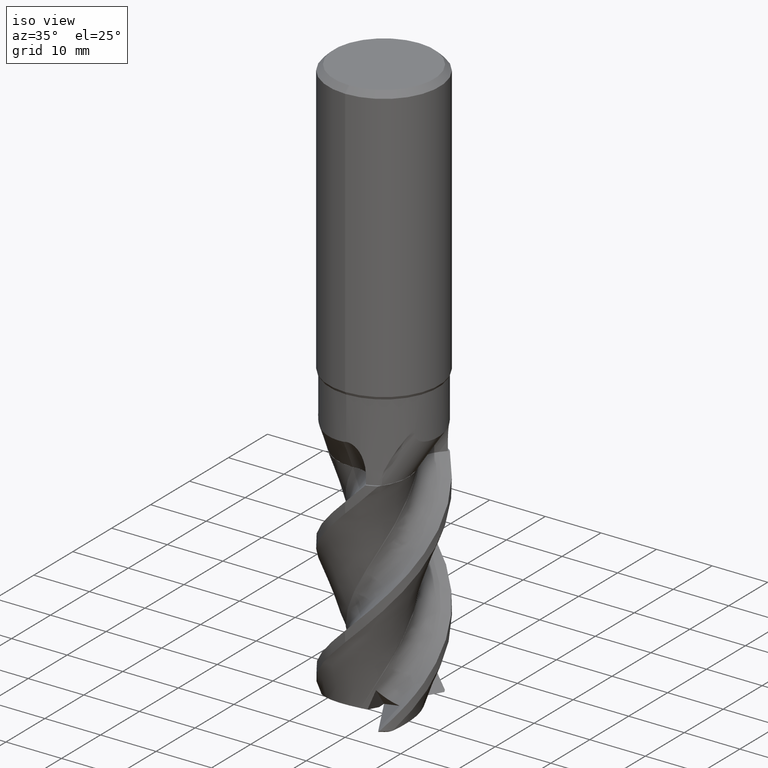
[diagram: clean part render]
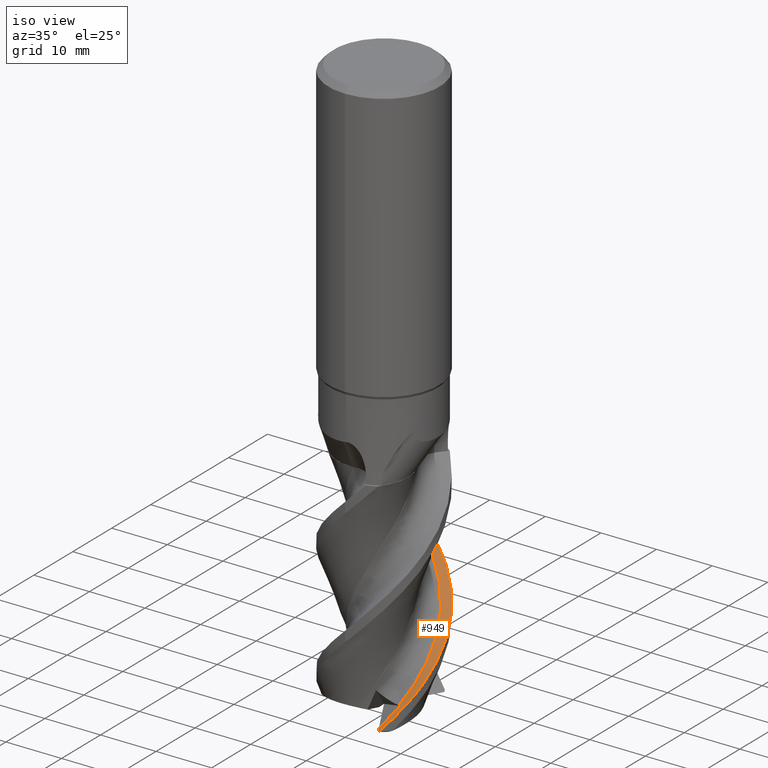
[diagram: same view with one face highlighted and labeled with its STEP entity id]
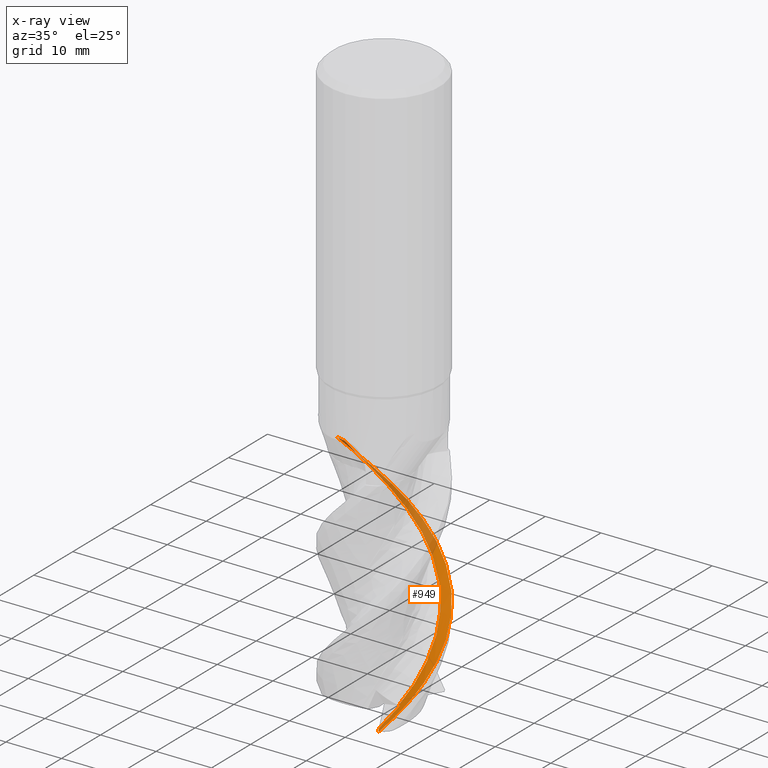
[diagram: x-ray of the same camera — body ghosted, the highlighted face saturated]
A machine part, iso view. The second image highlights one B-rep face of the part: STEP entity #949.
The next image is the same camera in x-ray: the body ghosted, the highlighted face saturated — about 28% of this face is hidden behind the body in this view.
In plain terms, the highlighted face is a freeform B-spline surface patch.
Its self-contained STEP definition (entity closure, byte-faithful):
#471=EDGE_CURVE('',#1187,#537,#1329,.T.);
#497=EDGE_CURVE('',#967,#1281,#1357,.T.);
#525=EDGE_CURVE('',#1271,#641,#1388,.T.);
#537=VERTEX_POINT('',#1401);
#561=VERTEX_POINT('',#1427);
#613=EDGE_CURVE('',#641,#1253,#1485,.T.);
#641=VERTEX_POINT('',#1517);
#657=EDGE_CURVE('',#1253,#1187,#1535,.T.);
#683=EDGE_CURVE('',#537,#967,#1561,.T.);
#861=EDGE_CURVE('',#1281,#561,#1759,.T.);
#949=ADVANCED_FACE('',(#1852),#1853,.T.);
#967=VERTEX_POINT('',#1873);
#1017=EDGE_CURVE('',#561,#1271,#1925,.T.);
#1187=VERTEX_POINT('',#2112);
#1253=VERTEX_POINT('',#2183);
#1271=VERTEX_POINT('',#2202);
#1281=VERTEX_POINT('',#2214);
#1329=B_SPLINE_CURVE_WITH_KNOTS('',3,(#2316,#2317,#2318,#2319),.UNSPECIFIED.,.F.,.F.,(4,4),(0.0,1.86574099658228),.UNSPECIFIED.);
#1357=B_SPLINE_CURVE_WITH_KNOTS('',3,(#2415,#2416,#2417,#2418,#2419,#2420,#2421,#2422,#2423,#2424,#2425,#2426,#2427,#2428,#2429,#2430,#2431,#2432,#2433,#2434,#2435,#2436,#2437,#2438,#2439,#2440,#2441,#2442,#2443,#2444,#2445,#2446,#2447,#2448,#2449,#2450,#2451,#2452,#2453,#2454,#2455,#2456,#2457,#2458,#2459,#2460,#2461,#2462,#2463,#2464),.UNSPECIFIED.,.F.,.F.,(4,2,2,2,2,2,2,2,2,2,2,2,2,2,2,2,2,2,2,2,2,2,2,2,4),(0.0,1.83688179088632,5.68461323344617,6.58714347548121,8.38778271226653,10.2578606888634,12.9205590427445,14.8115356261273,18.507071820997,20.4283711112207,22.1734569225614,24.0094227868724,26.6497551941611,28.5041572687774,32.1316176911137,34.0160028990023,35.713504521051,37.512762740781,39.9990802534086,40.9011966697282,43.2801547555303,44.7519676223213,45.309646177908,46.6616631189539,47.8933672128346),.UNSPECIFIED.);
#1388=B_SPLINE_CURVE_WITH_KNOTS('',3,(#3016,#3017,#3018,#3019,#3020,#3021,#3022,#3023,#3024,#3025,#3026,#3027,#3028,#3029,#3030,#3031,#3032,#3033,#3034,#3035,#3036,#3037,#3038,#3039,#3040,#3041,#3042,#3043,#3044,#3045,#3046,#3047,#3048,#3049,#3050,#3051,#3052,#3053),.UNSPECIFIED.,.F.,.F.,(4,2,2,2,2,2,2,2,2,2,2,2,2,2,2,2,2,2,4),(0.0,1.17018952612344,1.61476621333717,2.01305195421356,2.27869455460012,2.5419910493186,2.97181252233157,3.16650981999703,3.26459722587915,3.35482363061817,3.45772349967878,3.63341462547851,4.18738043732987,6.06608366809152,8.30682341428259,10.0075057739144,10.1733693496282,10.6662359499394,12.1676773603142),.UNSPECIFIED.);
#1401=CARTESIAN_POINT('',(-9.8195921515313,1.8903994254085,-64.0));
#1427=CARTESIAN_POINT('',(4.88773809838241,-8.49411656863862,-104.0));
#1485=B_SPLINE_CURVE_WITH_KNOTS('',3,(#3378,#3379,#3380,#3381,#3382,#3383),.UNSPECIFIED.,.F.,.F.,(4,2,4),(0.0,1.05077420778341,2.10613535444276),.UNSPECIFIED.);
#1517=CARTESIAN_POINT('',(6.74552074163303,-5.5651342774516,-100.392685558984));
#1535=B_SPLINE_CURVE_WITH_KNOTS('',3,(#3953,#3954,#3955,#3956,#3957,#3958,#3959,#3960,#3961,#3962,#3963,#3964,#3965,#3966,#3967,#3968,#3969,#3970,#3971,#3972,#3973,#3974,#3975,#3976,#3977,#3978,#3979,#3980,#3981,#3982,#3983,#3984,#3985,#3986,#3987,#3988,#3989,#3990,#3991,#3992,#3993,#3994,#3995,#3996,#3997,#3998,#3999,#4000,#4001,#4002,#4003,#4004,#4005,#4006,#4007,#4008),.UNSPECIFIED.,.F.,.F.,(4,1,1,2,1,2,1,2,1,1,1,2,1,2,1,2,1,2,1,2,1,2,1,2,1,2,1,2,1,2,1,2,1,2,1,2,1,4),(0.0,1.2562153494694,1.88432302420411,2.51243069893881,3.76864604840821,5.02486139787761,7.53729209681642,10.0497227957552,11.3059381452246,12.562153494694,13.8183688441634,15.0745841936328,17.5870148925716,20.0994455915105,22.6118762904493,25.1243069893881,27.6367376883269,30.1491683872657,32.6615990862045,35.1740297851433,37.6864604840821,40.1988911830209,42.7113218819597,45.2237525808985,47.7361832798373,50.2486139787761,52.7610446777149,55.2734753766537,57.7859060755926,60.2983367745314,62.8107674734702,65.323198172409,67.8356288713478,70.3480595702866,72.8604902692254,75.3729209681642,77.885351667103,80.3977823660418),.UNSPECIFIED.);
#1561=B_SPLINE_CURVE_WITH_KNOTS('',3,(#4102,#4103,#4104,#4105,#4106,#4107,#4108,#4109,#4110,#4111,#4112,#4113,#4114,#4115,#4116,#4117,#4118,#4119,#4120,#4121,#4122,#4123,#4124,#4125,#4126,#4127,#4128,#4129,#4130,#4131,#4132,#4133,#4134,#4135,#4136,#4137,#4138,#4139,#4140,#4141,#4142,#4143,#4144,#4145,#4146,#4147,#4148,#4149,#4150,#4151),.UNSPECIFIED.,.F.,.F.,(4,2,2,2,2,2,2,2,2,2,2,2,2,2,2,2,2,2,2,2,2,2,2,2,4),(0.0,1.83688179088632,5.68461323344617,6.58714347548121,8.38778271226653,10.2578606888634,12.9205590427445,14.8115356261273,18.507071820997,20.4283711112207,22.1734569225614,24.0094227868724,26.6497551941611,28.5041572687774,32.1316176911137,34.0160028990023,35.713504521051,37.512762740781,39.9990802534086,40.9011966697282,43.2801547555303,44.7519676223213,45.309646177908,46.6616631189539,47.8933672128346),.UNSPECIFIED.);
#1759=B_SPLINE_CURVE_WITH_KNOTS('',3,(#5998,#5999,#6000,#6001),.UNSPECIFIED.,.F.,.F.,(4,4),(0.0,0.376044254599672),.UNSPECIFIED.);
#1852=FACE_OUTER_BOUND('',#7028,.T.);
#1853=B_SPLINE_SURFACE_WITH_KNOTS('',3,3,((#7029,#7030,#7031,#7032,#7033,#7034,#7035,#7036,#7037,#7038,#7039,#7040,#7041,#7042,#7043,#7044,#7045,#7046,#7047,#7048,#7049,#7050,#7051,#7052,#7053,#7054,#7055,#7056,#7057,#7058,#7059,#7060,#7061,#7062,#7063,#7064,#7065,#7066,#7067,#7068,#7069,#7070,#7071,#7072,#7073,#7074,#7075,#7076,#7077,#7078,#7079,#7080,#7081,#7082,#7083,#7084,#7085,#7086,#7087,#7088,#7089,#7090,#7091,#7092,#7093,#7094,#7095,#7096,#7097,#7098,#7099,#7100,#7101,#7102),(#7103,#7104,#7105,#7106,#7107,#7108,#7109,#7110,#7111,#7112,#7113,#7114,#7115,#7116,#7117,#7118,#7119,#7120,#7121,#7122,#7123,#7124,#7125,#7126,#7127,#7128,#7129,#7130,#7131,#7132,#7133,#7134,#7135,#7136,#7137,#7138,#7139,#7140,#7141,#7142,#7143,#7144,#7145,#7146,#7147,#7148,#7149,#7150,#7151,#7152,#7153,#7154,#7155,#7156,#7157,#7158,#7159,#7160,#7161,#7162,#7163,#7164,#7165,#7166,#7167,#7168,#7169,#7170,#7171,#7172,#7173,#7174,#7175,#7176),(#7177,#7178,#7179,#7180,#7181,#7182,#7183,#7184,#7185,#7186,#7187,#7188,#7189,#7190,#7191,#7192,#7193,#7194,#7195,#7196,#7197,#7198,#7199,#7200,#7201,#7202,#7203,#7204,#7205,#7206,#7207,#7208,#7209,#7210,#7211,#7212,#7213,#7214,#7215,#7216,#7217,#7218,#7219,#7220,#7221,#7222,#7223,#7224,#7225,#7226,#7227,#7228,#7229,#7230,#7231,#7232,#7233,#7234,#7235,#7236,#7237,#7238,#7239,#7240,#7241,#7242,#7243,#7244,#7245,#7246,#7247,#7248,#7249,#7250),(#7251,#7252,#7253,#7254,#7255,#7256,#7257,#7258,#7259,#7260,#7261,#7262,#7263,#7264,#7265,#7266,#7267,#7268,#7269,#7270,#7271,#7272,#7273,#7274,#7275,#7276,#7277,#7278,#7279,#7280,#7281,#7282,#7283,#7284,#7285,#7286,#7287,#7288,#7289,#7290,#7291,#7292,#7293,#7294,#7295,#7296,#7297,#7298,#7299,#7300,#7301,#7302,#7303,#7304,#7305,#7306,#7307,#7308,#7309,#7310,#7311,#7312,#7313,#7314,#7315,#7316,#7317,#7318,#7319,#7320,#7321,#7322,#7323,#7324)),.UNSPECIFIED.,.F.,.F.,.F.,(4,4),(4,1,1,2,1,2,1,1,2,1,1,2,1,1,1,2,1,1,2,1,1,2,1,1,1,2,1,1,2,1,1,2,1,1,1,2,1,1,2,1,1,2,1,1,1,2,1,1,2,1,1,2,1,1,1,4),(5.32907051820075E-015,2.03333333333333),(0.0,0.942161512102053,1.88432302420411,2.51243069893881,3.76864604840821,5.02486139787761,7.53729209681642,8.79350744628582,10.0497227957552,11.9340458199593,13.8183688441634,15.0745841936328,16.3307995431022,17.5870148925716,18.8432302420411,20.0994455915105,21.3556609409799,23.239983965184,25.1243069893881,27.0086300135922,28.8929530377963,30.1491683872657,31.4053837367351,32.6615990862045,33.9178144356739,35.1740297851433,36.4302451346127,38.3145681588168,40.1988911830209,42.083214207225,43.9675372314291,45.2237525808985,46.4799679303679,47.7361832798373,48.9923986293067,50.2486139787761,51.5048293282455,53.3891523524496,55.2734753766537,57.1577984008579,59.042121425062,60.2983367745314,61.5545521240008,62.8107674734702,64.0669828229396,65.323198172409,66.5794135218784,68.4637365460825,70.3480595702866,72.2323825944907,74.1167056186948,75.3729209681642,76.6291363176336,77.885351667103,79.1415670165724,80.3977823660418),.UNSPECIFIED.);
#1873=CARTESIAN_POINT('',(2.41256380381924E-013,9.99993471722382,-77.8174550813689));
#1925=B_SPLINE_CURVE_WITH_KNOTS('',3,(#7788,#7789,#7790,#7791),.UNSPECIFIED.,.F.,.F.,(4,4),(0.0,1.49250499094357),.UNSPECIFIED.);
#2112=CARTESIAN_POINT('',(-8.21583084974177,1.59106973061077,-64.0000000000002));
#2183=CARTESIAN_POINT('',(6.41067370808631,-5.37938452218688,-100.473594224671));
#2202=CARTESIAN_POINT('',(4.46408683878391,-7.76761527020012,-104.0));
#2214=CARTESIAN_POINT('',(5.16433493080699,-8.56327301459242,-103.8));
#2316=CARTESIAN_POINT('',(-8.21583084976017,1.59106973051216,-64.0));
#2317=CARTESIAN_POINT('',(-8.82718747143766,1.70517358014419,-64.0));
#2318=CARTESIAN_POINT('',(-9.43854385485357,1.81927870636452,-64.0));
#2319=CARTESIAN_POINT('',(-10.0499,1.93338510917107,-64.0));
#2415=CARTESIAN_POINT('',(-9.8195921515313,1.89039942540851,-64.0));
#2416=CARTESIAN_POINT('',(-9.73680179583058,2.32045577612645,-64.4279032008373));
#2417=CARTESIAN_POINT('',(-9.62616861492684,2.74299842483845,-64.8612519519152));
#2418=CARTESIAN_POINT('',(-9.20147259722876,4.02005363807295,-66.2119453588237));
#2419=CARTESIAN_POINT('',(-8.79681885369268,4.84242542738371,-67.1408594066878));
#2420=CARTESIAN_POINT('',(-8.16514397107321,5.77707335028328,-68.2666298142365));
#2421=CARTESIAN_POINT('',(-8.03905614943915,5.95133236644778,-68.4799434901195));
#2422=CARTESIAN_POINT('',(-7.6434263994983,6.46232165426562,-69.1162582574725));
#2423=CARTESIAN_POINT('',(-7.35946761866097,6.78430140816072,-69.5345292134535));
#2424=CARTESIAN_POINT('',(-6.72891096634235,7.41115819908335,-70.4222580444062));
#2425=CARTESIAN_POINT('',(-6.38746227012636,7.70720699300879,-70.8778866002762));
#2426=CARTESIAN_POINT('',(-5.51751157652145,8.36455225197479,-71.9813376341191));
#2427=CARTESIAN_POINT('',(-4.96811168381596,8.70254915214437,-72.6321638236527));
#2428=CARTESIAN_POINT('',(-3.97444745947986,9.18766042162107,-73.7311607623126));
#2429=CARTESIAN_POINT('',(-3.55336347728873,9.3585454748018,-74.1709372673356));
#2430=CARTESIAN_POINT('',(-2.26623385999863,9.78088875441132,-75.514618129322));
#2431=CARTESIAN_POINT('',(-1.38483293467721,9.94334112034112,-76.4215144979877));
#2432=CARTESIAN_POINT('',(-0.0363006088850028,10.0105285744786,-77.7826774828773));
#2433=CARTESIAN_POINT('',(0.428775960197617,10.0016701883967,-78.247236054852));
#2434=CARTESIAN_POINT('',(1.3172894859256,9.9218848606799,-79.1252920679502));
#2435=CARTESIAN_POINT('',(1.7360398637281,9.85749995050665,-79.5382619480409));
#2436=CARTESIAN_POINT('',(2.59874100573697,9.66698184683463,-80.4203157849213));
#2437=CARTESIAN_POINT('',(3.03234541832829,9.53971035256465,-80.8759048502464));
#2438=CARTESIAN_POINT('',(4.0615590237687,9.16084746319968,-81.9857675872801));
#2439=CARTESIAN_POINT('',(4.64847958002076,8.87790319686943,-82.6431174089107));
#2440=CARTESIAN_POINT('',(5.59777984951222,8.29905298076998,-83.7477824578689));
#2441=CARTESIAN_POINT('',(5.96848125758253,8.03655919389752,-84.1873210526903));
#2442=CARTESIAN_POINT('',(7.01801302311412,7.17985215591402,-85.531584927985));
#2443=CARTESIAN_POINT('',(7.6301750734402,6.5245551675841,-86.4390864183552));
#2444=CARTESIAN_POINT('',(8.41368232905812,5.42424226569849,-87.8005745330614));
#2445=CARTESIAN_POINT('',(8.65678997469815,5.02769801326058,-88.2649574624631));
#2446=CARTESIAN_POINT('',(9.06669987096167,4.23928760390179,-89.1392161205382));
#2447=CARTESIAN_POINT('',(9.23701700052727,3.85479958518363,-89.5493891767617));
#2448=CARTESIAN_POINT('',(9.5410969636832,3.02853654652327,-90.4285406652441));
#2449=CARTESIAN_POINT('',(9.66794885189552,2.59471603395918,-90.8842700001985));
#2450=CARTESIAN_POINT('',(9.89893487455372,1.54824090147482,-91.9688175478429));
#2451=CARTESIAN_POINT('',(9.9766331728941,0.927206279076268,-92.6004351387727));
#2452=CARTESIAN_POINT('',(10.0022994472353,0.0727103344601177,-93.450955853776));
#2453=CARTESIAN_POINT('',(10.0013906285882,-0.155806862244051,-93.6766676732029));
#2454=CARTESIAN_POINT('',(9.96927950575422,-0.989334851649771,-94.4938435346194));
#2455=CARTESIAN_POINT('',(9.88345283613999,-1.81925026488744,-95.3172827968889));
#2456=CARTESIAN_POINT('',(9.4356740911284,-3.3686339840874,-96.9491844614293));
#2457=CARTESIAN_POINT('',(9.20938442838165,-3.94633219056517,-97.5752784988786));
#2458=CARTESIAN_POINT('',(8.8234325710378,-4.71192885272547,-98.4285172984764));
#2459=CARTESIAN_POINT('',(8.7095674962793,-4.91930502920194,-98.6622106111756));
#2460=CARTESIAN_POINT('',(8.29297727467946,-5.61762601590349,-99.4586691797531));
#2461=CARTESIAN_POINT('',(7.84686830302832,-6.27042652931896,-100.238006715456));
#2462=CARTESIAN_POINT('',(6.59274472440632,-7.56807428979895,-102.064097949723));
#2463=CARTESIAN_POINT('',(5.91269706929701,-8.11194858551921,-102.941449862242));
#2464=CARTESIAN_POINT('',(5.16433493080699,-8.56327301459242,-103.8));
#3016=CARTESIAN_POINT('',(5.15103700784218,-9.03679388245954,-104.043172367634));
#3017=CARTESIAN_POINT('',(4.95930484677053,-8.69712411452996,-104.039635709793));
#3018=CARTESIAN_POINT('',(4.76225019266645,-8.34471009099261,-104.034063441737));
#3019=CARTESIAN_POINT('',(4.5761013002307,-7.99374655699459,-104.018248353137));
#3020=CARTESIAN_POINT('',(4.51638922907323,-7.87854564222724,-104.011643847903));
#3021=CARTESIAN_POINT('',(4.42539329959958,-7.68560110691826,-103.991416580701));
#3022=CARTESIAN_POINT('',(4.39225593358866,-7.6065008026013,-103.978885828254));
#3023=CARTESIAN_POINT('',(4.35797807788311,-7.49419166000993,-103.948106226119));
#3024=CARTESIAN_POINT('',(4.35024269746792,-7.45571680862636,-103.933486327788));
#3025=CARTESIAN_POINT('',(4.34574510438096,-7.38779442940762,-103.898363387841));
#3026=CARTESIAN_POINT('',(4.34886424338266,-7.35783428213703,-103.877681408228));
#3027=CARTESIAN_POINT('',(4.37108455645347,-7.28488637722586,-103.81245072274));
#3028=CARTESIAN_POINT('',(4.39944123335459,-7.24434232945314,-103.759917897478));
#3029=CARTESIAN_POINT('',(4.46537639911806,-7.1833788322041,-103.657235855851));
#3030=CARTESIAN_POINT('',(4.48803031760258,-7.16539343093187,-103.623686653132));
#3031=CARTESIAN_POINT('',(4.5213555314168,-7.1408270633172,-103.57543914307));
#3032=CARTESIAN_POINT('',(4.53275147849084,-7.13275283694633,-103.55913118055));
#3033=CARTESIAN_POINT('',(4.55463240522216,-7.1176881331321,-103.528075047505));
#3034=CARTESIAN_POINT('',(4.56526360997546,-7.11056195578898,-103.513098865431));
#3035=CARTESIAN_POINT('',(4.58800431776849,-7.09562138467334,-103.48124093167));
#3036=CARTESIAN_POINT('',(4.60028771196923,-7.08773542108445,-103.464140513955));
#3037=CARTESIAN_POINT('',(4.6334409799016,-7.06680316157239,-103.41819179125));
#3038=CARTESIAN_POINT('',(4.65492544004285,-7.05362009121649,-103.388638549492));
#3039=CARTESIAN_POINT('',(4.74255463198347,-7.00070768071502,-103.268600297746));
#3040=CARTESIAN_POINT('',(4.80987499188324,-6.96188892468254,-103.177451924104));
#3041=CARTESIAN_POINT('',(5.10513505796856,-6.7908170457337,-102.777207265095));
#3042=CARTESIAN_POINT('',(5.38309687153727,-6.6296828264518,-102.400361952579));
#3043=CARTESIAN_POINT('',(6.0985948422236,-6.13601415134314,-101.384219540045));
#3044=CARTESIAN_POINT('',(6.46004310538173,-5.84172713517262,-100.844653002892));
#3045=CARTESIAN_POINT('',(7.06332042275347,-5.25831988526897,-99.8901856505262));
#3046=CARTESIAN_POINT('',(7.30916015188877,-4.98845889694162,-99.4824621294164));
#3047=CARTESIAN_POINT('',(7.56365725188227,-4.67176369098853,-99.038562629607));
#3048=CARTESIAN_POINT('',(7.57405600816375,-4.65860526867302,-99.0202973329684));
#3049=CARTESIAN_POINT('',(7.68796011156917,-4.51458625417103,-98.8202923768302));
#3050=CARTESIAN_POINT('',(7.80561408121423,-4.36591740111126,-98.6137564524942));
#3051=CARTESIAN_POINT('',(8.21988198123039,-3.83539760884782,-97.882410777544));
#3052=CARTESIAN_POINT('',(8.49425975339056,-3.46812235958471,-97.38873260986));
#3053=CARTESIAN_POINT('',(8.77106490994896,-3.05530091515071,-96.8659667860052));
#3378=CARTESIAN_POINT('',(8.23628951109186,-6.35322956295865,-100.074640674409));
#3379=CARTESIAN_POINT('',(7.92878518340689,-6.1964009926805,-100.134025883696));
#3380=CARTESIAN_POINT('',(7.62249361793048,-6.03699978844565,-100.196637952074));
#3381=CARTESIAN_POINT('',(7.01399283455273,-5.7128341503595,-100.329148698625));
#3382=CARTESIAN_POINT('',(6.710697165961,-5.54745820097393,-100.399319469805));
#3383=CARTESIAN_POINT('',(6.41067370811109,-5.37938452215025,-100.47359422474));
#3953=CARTESIAN_POINT('',(-8.26574009113054,-1.29562797785031,-124.0));
#3954=CARTESIAN_POINT('',(-8.26381339394848,-1.32321925418586,-123.58336594033));
#3955=CARTESIAN_POINT('',(-8.23964321175438,-1.51662926318661,-122.958234614316));
#3956=CARTESIAN_POINT('',(-8.11439845143223,-2.07880939913278,-122.124687904713));
#3957=CARTESIAN_POINT('',(-8.00410268765233,-2.45738463261917,-121.708004237344));
#3958=CARTESIAN_POINT('',(-7.78901235162283,-3.08982819911714,-121.083139890201));
#3959=CARTESIAN_POINT('',(-7.45990172956491,-3.8455394930008,-120.25005872492));
#3960=CARTESIAN_POINT('',(-7.09251773883762,-4.45267537615328,-119.416819320437));
#3961=CARTESIAN_POINT('',(-6.52765965472504,-5.27965676578334,-118.166680986508));
#3962=CARTESIAN_POINT('',(-5.65067632651088,-6.28381162661117,-116.499837170973));
#3963=CARTESIAN_POINT('',(-4.50974352275236,-7.08688173495618,-114.833056140322));
#3964=CARTESIAN_POINT('',(-3.54702703536084,-7.58812874691363,-113.583140582419));
#3965=CARTESIAN_POINT('',(-2.8971856905836,-7.87415624522017,-112.749876240125));
#3966=CARTESIAN_POINT('',(-1.90137145504802,-8.17151303745623,-111.499946850793));
#3967=CARTESIAN_POINT('',(-0.88063490939447,-8.34379561372967,-110.249956626945));
#3968=CARTESIAN_POINT('',(-0.179351250185985,-8.37419565342444,-109.416598961492));
#3969=CARTESIAN_POINT('',(0.890089857422737,-8.35139887083098,-108.166567918505));
#3970=CARTESIAN_POINT('',(2.2633969823659,-8.1437686155387,-106.499923721622));
#3971=CARTESIAN_POINT('',(3.54766308056695,-7.61293809815473,-104.833202526084));
#3972=CARTESIAN_POINT('',(4.78571486586925,-6.90187860876666,-103.166545567672));
#3973=CARTESIAN_POINT('',(5.89037324906806,-6.06167916131524,-101.499936909684));
#3974=CARTESIAN_POINT('',(6.76241130969973,-4.98130653156371,-99.8332161398162));
#3975=CARTESIAN_POINT('',(7.50854616000446,-3.76314268856997,-98.1665460259867));
#3976=CARTESIAN_POINT('',(8.07561998049203,-2.49524251000948,-96.4999296368281));
#3977=CARTESIAN_POINT('',(8.3228053099102,-1.12872729764395,-94.8332097168632));
#3978=CARTESIAN_POINT('',(8.39348981306872,0.297525032336451,-93.1665423475839));
#3979=CARTESIAN_POINT('',(8.28332937863807,1.68163793998313,-91.4999270761215));
#3980=CARTESIAN_POINT('',(7.84519053433683,2.99938461449989,-89.8332065188816));
#3981=CARTESIAN_POINT('',(7.22334575602256,4.28516143506216,-88.1665385976218));
#3982=CARTESIAN_POINT('',(6.46297283645776,5.44715753409608,-86.4999234122097));
#3983=CARTESIAN_POINT('',(5.44673090784325,6.39345986202193,-84.8332033574622));
#3984=CARTESIAN_POINT('',(4.28472958475761,7.22359586734123,-83.1665356656587));
#3985=CARTESIAN_POINT('',(3.06046640841706,7.87877424995012,-81.499920220675));
#3986=CARTESIAN_POINT('',(1.71485848470736,8.22207833204614,-79.8331996846058));
#3987=CARTESIAN_POINT('',(0.29691562244691,8.3935194028311,-78.1665318182108));
#3988=CARTESIAN_POINT('',(-1.09170540207553,8.38150965592981,-76.4999167002086));
#3989=CARTESIAN_POINT('',(-2.43705441538407,8.03765908481578,-74.8331966499015));
#3990=CARTESIAN_POINT('',(-3.7634044387641,7.50839719799417,-73.1665288952593));
#3991=CARTESIAN_POINT('',(-4.9761754656638,6.83221724741606,-71.4999133750214));
#3992=CARTESIAN_POINT('',(-5.99208072730137,5.88542876194576,-69.8331927880295));
#3993=CARTESIAN_POINT('',(-6.90245433981807,4.78491718365136,-68.1665248992601));
#3994=CARTESIAN_POINT('',(-7.64264621393645,3.60992771732773,-66.4999098825569));
#3995=CARTESIAN_POINT('',(-8.08021925421969,2.29200306561763,-64.833190271443));
#3996=CARTESIAN_POINT('',(-8.35148909851181,0.889895275798577,-63.166523111745));
#3997=CARTESIAN_POINT('',(-8.43773641881676,-0.495883767398353,-61.4999072089256));
#3998=CARTESIAN_POINT('',(-8.18996467871237,-1.86221818190606,-59.8331843982385));
#3999=CARTESIAN_POINT('',(-7.75576710128292,-3.22295546557219,-58.1665138047882));
#4000=CARTESIAN_POINT('',(-7.16683805631955,-4.48086065845404,-56.4999008383461));
#4001=CARTESIAN_POINT('',(-6.29455400118147,-5.5606613032212,-54.8331893314168));
#4002=CARTESIAN_POINT('',(-5.26242406827164,-6.54562548092147,-53.1665300884386));
#4003=CARTESIAN_POINT('',(-4.14370637086448,-7.36706736840156,-51.4999046423304));
#4004=CARTESIAN_POINT('',(-2.85590825229019,-7.89884433546843,-49.8331599200053));
#4005=CARTESIAN_POINT('',(-1.46825626773256,-8.26977213491846,-48.1664767538232));
#4006=CARTESIAN_POINT('',(-0.0911222550154305,-8.45073518937306,-46.4998994001679));
#4007=CARTESIAN_POINT('',(1.26622319433596,-8.30189648188423,-44.8332389841868));
#4008=CARTESIAN_POINT('',(1.94416062067068,-8.13971366882414,-43.9999156358532));
#4102=CARTESIAN_POINT('',(-9.8195921515313,1.89039942540851,-64.0));
#4103=CARTESIAN_POINT('',(-9.73680179583058,2.32045577612645,-64.4279032008373));
#4104=CARTESIAN_POINT('',(-9.62616861492684,2.74299842483845,-64.8612519519152));
#4105=CARTESIAN_POINT('',(-9.20147259722876,4.02005363807295,-66.2119453588237));
#4106=CARTESIAN_POINT('',(-8.79681885369268,4.84242542738371,-67.1408594066878));
#4107=CARTESIAN_POINT('',(-8.16514397107321,5.77707335028328,-68.2666298142365));
#4108=CARTESIAN_POINT('',(-8.03905614943915,5.95133236644778,-68.4799434901195));
#4109=CARTESIAN_POINT('',(-7.6434263994983,6.46232165426562,-69.1162582574725));
#4110=CARTESIAN_POINT('',(-7.35946761866097,6.78430140816072,-69.5345292134535));
#4111=CARTESIAN_POINT('',(-6.72891096634235,7.41115819908335,-70.4222580444062));
#4112=CARTESIAN_POINT('',(-6.38746227012636,7.70720699300879,-70.8778866002762));
#4113=CARTESIAN_POINT('',(-5.51751157652145,8.36455225197479,-71.9813376341191));
#4114=CARTESIAN_POINT('',(-4.96811168381596,8.70254915214437,-72.6321638236527));
#4115=CARTESIAN_POINT('',(-3.97444745947986,9.18766042162107,-73.7311607623126));
#4116=CARTESIAN_POINT('',(-3.55336347728873,9.3585454748018,-74.1709372673356));
#4117=CARTESIAN_POINT('',(-2.26623385999863,9.78088875441132,-75.514618129322));
#4118=CARTESIAN_POINT('',(-1.38483293467721,9.94334112034112,-76.4215144979877));
#4119=CARTESIAN_POINT('',(-0.0363006088850028,10.0105285744786,-77.7826774828773));
#4120=CARTESIAN_POINT('',(0.428775960197617,10.0016701883967,-78.247236054852));
#4121=CARTESIAN_POINT('',(1.3172894859256,9.9218848606799,-79.1252920679502));
#4122=CARTESIAN_POINT('',(1.7360398637281,9.85749995050665,-79.5382619480409));
#4123=CARTESIAN_POINT('',(2.59874100573697,9.66698184683463,-80.4203157849213));
#4124=CARTESIAN_POINT('',(3.03234541832829,9.53971035256465,-80.8759048502464));
#4125=CARTESIAN_POINT('',(4.0615590237687,9.16084746319968,-81.9857675872801));
#4126=CARTESIAN_POINT('',(4.64847958002076,8.87790319686943,-82.6431174089107));
#4127=CARTESIAN_POINT('',(5.59777984951222,8.29905298076998,-83.7477824578689));
#4128=CARTESIAN_POINT('',(5.96848125758253,8.03655919389752,-84.1873210526903));
#4129=CARTESIAN_POINT('',(7.01801302311412,7.17985215591402,-85.531584927985));
#4130=CARTESIAN_POINT('',(7.6301750734402,6.5245551675841,-86.4390864183552));
#4131=CARTESIAN_POINT('',(8.41368232905812,5.42424226569849,-87.8005745330614));
#4132=CARTESIAN_POINT('',(8.65678997469815,5.02769801326058,-88.2649574624631));
#4133=CARTESIAN_POINT('',(9.06669987096167,4.23928760390179,-89.1392161205382));
#4134=CARTESIAN_POINT('',(9.23701700052727,3.85479958518363,-89.5493891767617));
#4135=CARTESIAN_POINT('',(9.5410969636832,3.02853654652327,-90.4285406652441));
#4136=CARTESIAN_POINT('',(9.66794885189552,2.59471603395918,-90.8842700001985));
#4137=CARTESIAN_POINT('',(9.89893487455372,1.54824090147482,-91.9688175478429));
#4138=CARTESIAN_POINT('',(9.9766331728941,0.927206279076268,-92.6004351387727));
#4139=CARTESIAN_POINT('',(10.0022994472353,0.0727103344601177,-93.450955853776));
#4140=CARTESIAN_POINT('',(10.0013906285882,-0.155806862244051,-93.6766676732029));
#4141=CARTESIAN_POINT('',(9.96927950575422,-0.989334851649771,-94.4938435346194));
#4142=CARTESIAN_POINT('',(9.88345283613999,-1.81925026488744,-95.3172827968889));
#4143=CARTESIAN_POINT('',(9.4356740911284,-3.3686339840874,-96.9491844614293));
#4144=CARTESIAN_POINT('',(9.20938442838165,-3.94633219056517,-97.5752784988786));
#4145=CARTESIAN_POINT('',(8.8234325710378,-4.71192885272547,-98.4285172984764));
#4146=CARTESIAN_POINT('',(8.7095674962793,-4.91930502920194,-98.6622106111756));
#4147=CARTESIAN_POINT('',(8.29297727467946,-5.61762601590349,-99.4586691797531));
#4148=CARTESIAN_POINT('',(7.84686830302832,-6.27042652931896,-100.238006715456));
#4149=CARTESIAN_POINT('',(6.59274472440632,-7.56807428979895,-102.064097949723));
#4150=CARTESIAN_POINT('',(5.91269706929701,-8.11194858551921,-102.941449862242));
#4151=CARTESIAN_POINT('',(5.16433493080699,-8.56327301459242,-103.8));
#5998=CARTESIAN_POINT('',(5.16433493080703,-8.56327301459242,-103.8));
#5999=CARTESIAN_POINT('',(5.06432107242561,-8.53974015782523,-103.871802333971));
#6000=CARTESIAN_POINT('',(4.97189830316261,-8.51641244222188,-103.938700327705));
#6001=CARTESIAN_POINT('',(4.88773809838238,-8.49411656863863,-104.0));
#7028=EDGE_LOOP('',(#10677,#10678,#10679,#10680,#10681,#10682,#10683,#10684));
#7029=CARTESIAN_POINT('',(-8.26574009111506,-1.2956279779491,-124.0));
#7030=CARTESIAN_POINT('',(-8.26429506821743,-1.31632143519938,-123.687524455247));
#7031=CARTESIAN_POINT('',(-8.24435125996112,-1.47138904785919,-123.062444451835));
#7032=CARTESIAN_POINT('',(-8.1418757631604,-1.98408830785106,-122.22885941995));
#7033=CARTESIAN_POINT('',(-8.00410268761574,-2.45738463271447,-121.708004237344));
#7034=CARTESIAN_POINT('',(-7.78901235159791,-3.08982819921004,-121.083139890201));
#7035=CARTESIAN_POINT('',(-7.45990172951403,-3.84553949308895,-120.250058724918));
#7036=CARTESIAN_POINT('',(-7.09251773878006,-4.45267537623913,-119.41681932044));
#7037=CARTESIAN_POINT('',(-6.5276596546692,-5.27965676585816,-118.166680986501));
#7038=CARTESIAN_POINT('',(-5.86964081312228,-6.03314254097953,-116.916546802908));
#7039=CARTESIAN_POINT('',(-4.79540882629388,-6.88544091965427,-115.249754042165));
#7040=CARTESIAN_POINT('',(-4.18883802686562,-7.25396407232461,-114.416417621028));
#7041=CARTESIAN_POINT('',(-3.38657428737413,-7.67166991561329,-113.374821322757));
#7042=CARTESIAN_POINT('',(-2.40653553723556,-8.06498487352882,-112.124930949812));
#7043=CARTESIAN_POINT('',(-1.05593218344052,-8.33608628922726,-110.458296596028));
#7044=CARTESIAN_POINT('',(-0.179351250086945,-8.37419565342179,-109.416598961492));
#7045=CARTESIAN_POINT('',(0.533609488320707,-8.3589977983592,-108.583244932834));
#7046=CARTESIAN_POINT('',(1.23379596485044,-8.29885026689846,-107.749910067407));
#7047=CARTESIAN_POINT('',(2.24677431153473,-8.08342131522951,-106.499907681761));
#7048=CARTESIAN_POINT('',(3.22593164388351,-7.74529331911863,-105.249886036802));
#7049=CARTESIAN_POINT('',(3.8571760269819,-7.4351732257644,-104.416538286481));
#7050=CARTESIAN_POINT('',(4.47620191962707,-7.07964348105624,-103.583209807275));
#7051=CARTESIAN_POINT('',(5.20824490168984,-6.59382480494489,-102.54156894399));
#7052=CARTESIAN_POINT('',(6.22421629346769,-5.66510168399277,-100.87491778443));
#7053=CARTESIAN_POINT('',(6.85567816605138,-4.82903605110766,-99.6248823755875));
#7054=CARTESIAN_POINT('',(7.41527930375615,-3.91541316885479,-98.3748797902154));
#7055=CARTESIAN_POINT('',(7.87363990881881,-2.97292661534995,-97.1249117267993));
#7056=CARTESIAN_POINT('',(8.2401933782838,-1.64534761373466,-95.4582310178087));
#7057=CARTESIAN_POINT('',(8.34047643570397,-0.772164215048028,-94.4165428745285));
#7058=CARTESIAN_POINT('',(8.37581868728353,-0.0590380500596632,-93.5832091899186));
#7059=CARTESIAN_POINT('',(8.36530562645541,0.643983299553605,-92.7498918129747));
#7060=CARTESIAN_POINT('',(8.22210402330773,1.66925177654861,-91.4999056928257));
#7061=CARTESIAN_POINT('',(7.95430473693309,2.66929132143671,-90.2498899447023));
#7062=CARTESIAN_POINT('',(7.68972933971441,3.32082881972835,-89.4165395385964));
#7063=CARTESIAN_POINT('',(7.3788069505567,3.96371723001316,-88.583205577907));
#7064=CARTESIAN_POINT('',(6.9458204732367,4.72867622106644,-87.5415592224896));
#7065=CARTESIAN_POINT('',(6.0908678272956,5.80825750302237,-85.8749044270263));
#7066=CARTESIAN_POINT('',(5.30148074237407,6.49722686275545,-84.6248698959868));
#7067=CARTESIAN_POINT('',(4.4299797500633,7.11982886672289,-83.3748691271342));
#7068=CARTESIAN_POINT('',(3.52253607736615,7.64355876729153,-82.124902053242));
#7069=CARTESIAN_POINT('',(2.22436104984508,8.10310120521739,-80.4582212136606));
#7070=CARTESIAN_POINT('',(1.36037276904221,8.26493859974609,-79.4165327180368));
#7071=CARTESIAN_POINT('',(0.651401337913358,8.35065913515384,-78.5831987847798));
#7072=CARTESIAN_POINT('',(-0.0507155516578088,8.38990566691882,-77.7498813213945));
#7073=CARTESIAN_POINT('',(-1.08362942065866,8.31956343018948,-76.4998953835013));
#7074=CARTESIAN_POINT('',(-2.1000933440979,8.12315531326611,-75.2498799480949));
#7075=CARTESIAN_POINT('',(-2.76864192132308,7.90534361305742,-74.4165297112409));
#7076=CARTESIAN_POINT('',(-3.43181693301035,7.64071266967717,-73.5831958339199));
#7077=CARTESIAN_POINT('',(-4.22539426804997,7.26297352886731,-72.5415494265206));
#7078=CARTESIAN_POINT('',(-5.36272220530051,6.48658405353806,-70.8748941700766));
#7079=CARTESIAN_POINT('',(-6.10587742894572,5.7478648145789,-69.6248593019333));
#7080=CARTESIAN_POINT('',(-6.78865763830018,4.92248113086328,-68.3748583853563));
#7081=CARTESIAN_POINT('',(-7.37531983853743,4.05425282851657,-67.1248915138807));
#7082=CARTESIAN_POINT('',(-7.92552041311267,2.79179344936137,-65.4582114648513));
#7083=CARTESIAN_POINT('',(-8.1480367153187,1.94147611806525,-64.4165234815186));
#7084=CARTESIAN_POINT('',(-8.28367163744949,1.24042222315436,-63.5831899016695));
#7085=CARTESIAN_POINT('',(-8.37247229617185,0.542932570281942,-62.7498724247617));
#7086=CARTESIAN_POINT('',(-8.37538486740392,-0.49225647014092,-61.4998855185647));
#7087=CARTESIAN_POINT('',(-8.25139626350556,-1.52004323562355,-60.2498683937769));
#7088=CARTESIAN_POINT('',(-8.08141528432369,-2.2024025029195,-59.4165167498164));
#7089=CARTESIAN_POINT('',(-7.86431649560954,-2.88277114474888,-58.5831814532103));
#7090=CARTESIAN_POINT('',(-7.54357157974268,-3.70127971186924,-57.541534923647));
#7091=CARTESIAN_POINT('',(-6.8494576033723,-4.89072992506272,-55.8748850308164));
#7092=CARTESIAN_POINT('',(-6.16553775950424,-5.68378182551504,-54.6248569260445));
#7093=CARTESIAN_POINT('',(-5.39144030980328,-6.42250495876474,-53.3748624938109));
#7094=CARTESIAN_POINT('',(-4.56765534033731,-7.06887924512995,-52.1248914656843));
#7095=CARTESIAN_POINT('',(-3.3453468407776,-7.70841726737274,-50.4581900753968));
#7096=CARTESIAN_POINT('',(-2.50899525605171,-7.99157628537082,-49.4164891284598));
#7097=CARTESIAN_POINT('',(-1.8151692637775,-8.17704018506644,-48.5831475453687));
#7098=CARTESIAN_POINT('',(-1.12331508161594,-8.31455348385945,-47.749835587392));
#7099=CARTESIAN_POINT('',(-0.0948944935825786,-8.38916061213809,-46.4998822427151));
#7100=CARTESIAN_POINT('',(0.926477810913998,-8.33853213291706,-45.2499072473529));
#7101=CARTESIAN_POINT('',(1.60519190760203,-8.22080507533754,-44.41657731002));
#7102=CARTESIAN_POINT('',(1.94416062076777,-8.13971366880022,-43.9999156358532));
#7103=CARTESIAN_POINT('',(-8.93534187804319,-1.40058588851275,-124.0));
#7104=CARTESIAN_POINT('',(-8.93331518265363,-1.42499074010421,-123.687525520906));
#7105=CARTESIAN_POINT('',(-8.91093651947238,-1.59570112488899,-123.062439252712));
#7106=CARTESIAN_POINT('',(-8.79941459698304,-2.15129392412203,-122.228836681244));
#7107=CARTESIAN_POINT('',(-8.65038224588904,-2.66236207539159,-121.707980402719));
#7108=CARTESIAN_POINT('',(-8.41801525843869,-3.34473708248461,-121.083126302439));
#7109=CARTESIAN_POINT('',(-8.06236714777965,-4.16052562348708,-120.250063512865));
#7110=CARTESIAN_POINT('',(-7.66495511954999,-4.81659424404207,-119.416830678158));
#7111=CARTESIAN_POINT('',(-7.05363461509515,-5.71057079419111,-118.166682135166));
#7112=CARTESIAN_POINT('',(-6.34156678010917,-6.52504217554885,-116.916538276021));
#7113=CARTESIAN_POINT('',(-5.17969243997365,-7.44587954391925,-115.2497365948));
#7114=CARTESIAN_POINT('',(-4.52389112523347,-7.84385722421755,-114.416400009699));
#7115=CARTESIAN_POINT('',(-3.6566994686405,-8.29483191897894,-113.37480900501));
#7116=CARTESIAN_POINT('',(-2.59712991521246,-8.7194646823592,-112.124926577747));
#7117=CARTESIAN_POINT('',(-1.13678041090387,-9.01180632720631,-110.458294666918));
#7118=CARTESIAN_POINT('',(-0.189213759180498,-9.05251399949868,-109.416594755024));
#7119=CARTESIAN_POINT('',(0.581347571484778,-9.03570576382566,-108.583239314744));
#7120=CARTESIAN_POINT('',(1.33817600458135,-8.97031231816287,-107.749904361485));
#7121=CARTESIAN_POINT('',(2.43318204003156,-8.73685155312584,-106.499901925626));
#7122=CARTESIAN_POINT('',(3.4915504167121,-8.37075712802351,-105.24987862134));
#7123=CARTESIAN_POINT('',(4.17370944506734,-8.03519071239009,-104.416530052509));
#7124=CARTESIAN_POINT('',(4.8425538941129,-7.6506078066421,-103.583201774964));
#7125=CARTESIAN_POINT('',(5.63358493575016,-7.12507523041355,-102.54156298663));
#7126=CARTESIAN_POINT('',(6.73147969007859,-6.12042528876873,-100.87491299925));
#7127=CARTESIAN_POINT('',(7.41362493360126,-5.21627135477275,-99.624875148054));
#7128=CARTESIAN_POINT('',(8.01794385484626,-4.22854364893773,-98.3748722601916));
#7129=CARTESIAN_POINT('',(8.51293063995318,-3.2094593006553,-97.1249067507189));
#7130=CARTESIAN_POINT('',(8.90847806002624,-1.77395526405355,-95.458224972625));
#7131=CARTESIAN_POINT('',(9.01639377545027,-0.830047044246701,-94.4165354763269));
#7132=CARTESIAN_POINT('',(9.05420967994321,-0.0592913093162686,-93.5832015900568));
#7133=CARTESIAN_POINT('',(9.04246735867028,0.700623051457517,-92.7498855728361));
#7134=CARTESIAN_POINT('',(8.88708384673963,1.80895966995604,-91.4999005370057));
#7135=CARTESIAN_POINT('',(8.59700691399744,2.88994999509835,-90.2498836365345));
#7136=CARTESIAN_POINT('',(8.31065882509079,3.59407167536229,-89.4165320333763));
#7137=CARTESIAN_POINT('',(7.97427465129303,4.28872912755212,-88.5831980726869));
#7138=CARTESIAN_POINT('',(7.50583437641235,5.11536625474359,-87.5415532797852));
#7139=CARTESIAN_POINT('',(6.58090947368887,6.28206926759705,-85.8748994341616));
#7140=CARTESIAN_POINT('',(5.72718386847745,7.02640700278383,-84.6248624155445));
#7141=CARTESIAN_POINT('',(4.78494488201101,7.69884001653225,-83.3748616466918));
#7142=CARTESIAN_POINT('',(3.80370488325414,8.26451159521738,-82.124897077281));
#7143=CARTESIAN_POINT('',(2.39993690784172,8.76060987501673,-80.4582154346324));
#7144=CARTESIAN_POINT('',(1.46593464737603,8.93506673083132,-79.4165250090615));
#7145=CARTESIAN_POINT('',(0.69964347132365,9.02733284173148,-78.583191479125));
#7146=CARTESIAN_POINT('',(-0.0593189954921292,9.0693779228666,-77.7498748984184));
#7147=CARTESIAN_POINT('',(-1.17596065430254,8.99275847196226,-76.4998902134142));
#7148=CARTESIAN_POINT('',(-2.27474742222846,8.77985318056633,-75.2498736528698));
#7149=CARTESIAN_POINT('',(-2.99728332372318,8.54404388532588,-74.4165222335918));
#7150=CARTESIAN_POINT('',(-3.71389188500992,8.25767941909321,-73.5831883562707));
#7151=CARTESIAN_POINT('',(-4.57149399133635,7.8489420603397,-72.5415434176626));
#7152=CARTESIAN_POINT('',(-5.80067340377865,7.00892237686513,-70.8748891735398));
#7153=CARTESIAN_POINT('',(-6.60361466597451,6.20993931020851,-69.6248517852513));
#7154=CARTESIAN_POINT('',(-7.34111144458671,5.31751201759428,-68.3748508686743));
#7155=CARTESIAN_POINT('',(-7.97483412655028,4.37863158866157,-67.124886489845));
#7156=CARTESIAN_POINT('',(-8.56896670011172,3.01342644859122,-65.4582055484216));
#7157=CARTESIAN_POINT('',(-8.80902102869873,2.0941672611517,-64.416516054316));
#7158=CARTESIAN_POINT('',(-8.95523816958316,1.33640578327293,-63.583182474467));
#7159=CARTESIAN_POINT('',(-9.05085047135894,0.58241738410427,-62.7498662309715));
#7160=CARTESIAN_POINT('',(-9.05342525629811,-0.536725740961931,-61.4998804181757));
#7161=CARTESIAN_POINT('',(-8.91880618289921,-1.64779433642194,-60.2498618414605));
#7162=CARTESIAN_POINT('',(-8.73469116384429,-2.38528426390423,-59.4165094218825));
#7163=CARTESIAN_POINT('',(-8.49969034032581,-3.12049936007325,-58.5831733186352));
#7164=CARTESIAN_POINT('',(-8.15254751623723,-4.00507882308884,-57.5415287304158));
#7165=CARTESIAN_POINT('',(-7.40145161589831,-5.29065424682896,-55.8748795426807));
#7166=CARTESIAN_POINT('',(-6.66167494092423,-6.14756990727585,-54.6248502007836));
#7167=CARTESIAN_POINT('',(-5.82463818501293,-6.94556398598202,-53.3748557685499));
#7168=CARTESIAN_POINT('',(-4.93376112992447,-7.64386470806855,-52.1248876257425));
#7169=CARTESIAN_POINT('',(-3.61193158499731,-8.33459656785612,-50.4581838350412));
#7170=CARTESIAN_POINT('',(-2.70777050570979,-8.64019929864356,-49.4164802041993));
#7171=CARTESIAN_POINT('',(-1.95783136373875,-8.84026754439069,-48.5831378144671));
#7172=CARTESIAN_POINT('',(-1.20993175134095,-8.98853629720839,-47.7498269600318));
#7173=CARTESIAN_POINT('',(-0.0980348463241336,-9.06862602488545,-46.4998761657096));
#7174=CARTESIAN_POINT('',(1.00624979363307,-9.01330930269484,-45.2499019879614));
#7175=CARTESIAN_POINT('',(1.739950517739,-8.88565053921227,-44.4165712053842));
#7176=CARTESIAN_POINT('',(2.10632897544942,-8.79780495482792,-43.9999095312174));
#7177=CARTESIAN_POINT('',(-9.60494366497583,-1.50554379907825,-124.0));
#7178=CARTESIAN_POINT('',(-9.60233513802771,-1.53366001896673,-123.6875265865));
#7179=CARTESIAN_POINT('',(-9.57752182097253,-1.72001320706368,-123.062434050348));
#7180=CARTESIAN_POINT('',(-9.45695335652044,-2.31849953512225,-122.228813935838));
#7181=CARTESIAN_POINT('',(-9.2966618607585,-2.86733952344459,-121.707956574398));
#7182=CARTESIAN_POINT('',(-9.04701805218328,-3.59964595502754,-121.083112702084));
#7183=CARTESIAN_POINT('',(-8.66483265074819,-4.47551174176474,-120.250068299847));
#7184=CARTESIAN_POINT('',(-8.23739244398811,-5.18051314683141,-119.416842050395));
#7185=CARTESIAN_POINT('',(-7.57960968821226,-6.1414847525767,-118.166683254804));
#7186=CARTESIAN_POINT('',(-6.81349269516155,-7.01694187028968,-116.916529640916));
#7187=CARTESIAN_POINT('',(-5.56397604342335,-8.00631811001413,-115.249719099147));
#7188=CARTESIAN_POINT('',(-4.8589441821027,-8.43375044785595,-114.416382505421));
#7189=CARTESIAN_POINT('',(-3.92682471216089,-8.9179938147351,-113.374796526741));
#7190=CARTESIAN_POINT('',(-2.78772421666164,-9.37394461813367,-112.124922305327));
#7191=CARTESIAN_POINT('',(-1.217628633124,-9.68752637614788,-110.458292670852));
#7192=CARTESIAN_POINT('',(-0.199076269080229,-9.73083233351429,-109.416590585424));
#7193=CARTESIAN_POINT('',(0.629085655460517,-9.71241374136989,-108.583233659771));
#7194=CARTESIAN_POINT('',(1.44255604633332,-9.64177426327259,-107.749898574196));
#7195=CARTESIAN_POINT('',(2.61958977123417,-9.39028191109869,-106.499895931466));
#7196=CARTESIAN_POINT('',(3.75716918641513,-8.99622106190994,-105.249871451221));
#7197=CARTESIAN_POINT('',(4.49024286459523,-8.63520814930845,-104.416521527538));
#7198=CARTESIAN_POINT('',(5.20890586718265,-8.22157218193971,-103.583194033585));
#7199=CARTESIAN_POINT('',(6.05892494918538,-7.6563256811098,-102.541556807163));
#7200=CARTESIAN_POINT('',(7.23874309134105,-6.57574886142584,-100.874908209335));
#7201=CARTESIAN_POINT('',(7.97157169497215,-5.60350667016188,-99.6248675062957));
#7202=CARTESIAN_POINT('',(8.62060841208586,-4.54167411730158,-98.3748651442756));
#7203=CARTESIAN_POINT('',(9.15222125716409,-3.44599198828158,-97.1249014153738));
#7204=CARTESIAN_POINT('',(9.57676284167517,-1.90256295716384,-95.4582190246332));
#7205=CARTESIAN_POINT('',(9.69231106071034,-0.887929871246622,-94.4165278528755));
#7206=CARTESIAN_POINT('',(9.73260072705265,-0.0595445707809901,-93.5831942153649));
#7207=CARTESIAN_POINT('',(9.71962903007327,0.757262794128203,-92.7498792168651));
#7208=CARTESIAN_POINT('',(9.55206367415448,1.94866754980464,-91.4998953101741));
#7209=CARTESIAN_POINT('',(9.23970921168619,3.11060871561999,-90.2498772272342));
#7210=CARTESIAN_POINT('',(8.93158813623385,3.8673144579633,-89.4165247367484));
#7211=CARTESIAN_POINT('',(8.56974252615204,4.61374109808657,-88.5831903589924));
#7212=CARTESIAN_POINT('',(8.06584812861989,5.50205619396214,-87.5415473561773));
#7213=CARTESIAN_POINT('',(7.07095105500576,6.75588105280968,-85.8748944331478));
#7214=CARTESIAN_POINT('',(6.15288694813263,7.55558714889166,-84.6248549265026));
#7215=CARTESIAN_POINT('',(5.13991006037394,8.27785116024875,-83.3748541748771));
#7216=CARTESIAN_POINT('',(4.08487364054068,8.88546449103751,-82.1248919283766));
#7217=CARTESIAN_POINT('',(2.57551280246483,9.41811851853126,-80.4582092117802));
#7218=CARTESIAN_POINT('',(1.57149646702307,9.60519489613802,-79.4165177074349));
#7219=CARTESIAN_POINT('',(0.747885663399449,9.70400651410279,-78.5831837662041));
#7220=CARTESIAN_POINT('',(-0.0679224757410106,9.74885023755042,-77.7498686847184));
#7221=CARTESIAN_POINT('',(-1.26829188451669,9.66595353148709,-76.4998849314118));
#7222=CARTESIAN_POINT('',(-2.44940147587234,9.43655110596114,-75.2498673534431));
#7223=CARTESIAN_POINT('',(-3.22592476093478,9.18274395816461,-74.4165147530014));
#7224=CARTESIAN_POINT('',(-3.99596680221124,8.87464636790556,-73.5831808816905));
#7225=CARTESIAN_POINT('',(-4.91759370756537,8.43491043449358,-72.5415374584815));
#7226=CARTESIAN_POINT('',(-6.23862455166721,7.53126076436834,-70.8748840163691));
#7227=CARTESIAN_POINT('',(-7.10135204978803,6.67201377544356,-69.6248442801048));
#7228=CARTESIAN_POINT('',(-7.89356510410598,5.71254293476888,-68.3748433403203));
#7229=CARTESIAN_POINT('',(-8.57434846498665,4.70301033410421,-67.1248813380952));
#7230=CARTESIAN_POINT('',(-9.21241288129347,3.23505944895299,-65.4581996153838));
#7231=CARTESIAN_POINT('',(-9.47000543037757,2.24685840687594,-64.4165085823257));
#7232=CARTESIAN_POINT('',(-9.62680461351288,1.43238934074896,-63.5831750920932));
#7233=CARTESIAN_POINT('',(-9.72922871046364,0.621902194273542,-62.7498599758823));
#7234=CARTESIAN_POINT('',(-9.73146575765313,-0.581195017111672,-61.4998750418185));
#7235=CARTESIAN_POINT('',(-9.58621607959337,-1.77554544091168,-60.2498558380887));
#7236=CARTESIAN_POINT('',(-9.3879670492125,-2.56816600756791,-59.4165010740338));
#7237=CARTESIAN_POINT('',(-9.13506417920602,-3.35822759272583,-58.5831662037044));
#7238=CARTESIAN_POINT('',(-8.76152350999335,-4.30887791718193,-57.5415219186086));
#7239=CARTESIAN_POINT('',(-7.9534455644685,-5.69057846414296,-55.8748746113197));
#7240=CARTESIAN_POINT('',(-7.15781217260271,-6.61135817970384,-54.6248431773642));
#7241=CARTESIAN_POINT('',(-6.25783600999058,-7.46862282256398,-53.3748493412449));
#7242=CARTESIAN_POINT('',(-5.29986696353287,-8.21885022665005,-52.1248834949712));
#7243=CARTESIAN_POINT('',(-3.87851629347605,-8.96077582318983,-50.4581775939873));
#7244=CARTESIAN_POINT('',(-2.90654575271025,-9.28882236297082,-49.4164713125658));
#7245=CARTESIAN_POINT('',(-2.10049346636667,-9.50349485271703,-48.5831280507752));
#7246=CARTESIAN_POINT('',(-1.29654841977578,-9.66251910502494,-47.7498183387201));
#7247=CARTESIAN_POINT('',(-0.10117518170837,-9.7480915008332,-46.4998703626087));
#7248=CARTESIAN_POINT('',(1.08602176633437,-9.68808645796283,-45.2498965909728));
#7249=CARTESIAN_POINT('',(1.87470914803456,-9.55049609425796,-44.4165653965961));
#7250=CARTESIAN_POINT('',(2.26849733013234,-9.45589624086982,-43.9999034265639));
#7251=CARTESIAN_POINT('',(-10.274545451904,-1.61050170964191,-124.0));
#7252=CARTESIAN_POINT('',(-10.2713551770216,-1.64232931683035,-123.687527652306));
#7253=CARTESIAN_POINT('',(-10.2441071189368,-1.84432528294468,-123.062428851151));
#7254=CARTESIAN_POINT('',(-10.1144921661715,-2.48570514282029,-122.228791197132));
#7255=CARTESIAN_POINT('',(-9.94294141805593,-3.07231697234757,-121.707932739773));
#7256=CARTESIAN_POINT('',(-9.67602096097582,-3.85455482585039,-121.083099114322));
#7257=CARTESIAN_POINT('',(-9.26729809098962,-4.790497894744,-120.250073087794));
#7258=CARTESIAN_POINT('',(-8.80982977885466,-5.54443198192382,-119.416853408112));
#7259=CARTESIAN_POINT('',(-8.10558474044497,-6.57239884633071,-118.16668440347));
#7260=CARTESIAN_POINT('',(-7.28541861429329,-7.5088414846002,-116.916521164443));
#7261=CARTESIAN_POINT('',(-5.94825968005481,-8.56675675063437,-115.249701651783));
#7262=CARTESIAN_POINT('',(-5.19399728827763,-9.02364354994197,-114.416364894091));
#7263=CARTESIAN_POINT('',(-4.19694988171666,-9.54115589281113,-113.374784208994));
#7264=CARTESIAN_POINT('',(-2.97831860049384,-10.0284243896089,-112.12491789545));
#7265=CARTESIAN_POINT('',(-1.29847685473204,-10.3632464514821,-110.458290703931));
#7266=CARTESIAN_POINT('',(-0.208938785980855,-10.4091506297843,-109.416586429371));
#7267=CARTESIAN_POINT('',(0.676823746431662,-10.3891217566433,-108.583227991266));
#7268=CARTESIAN_POINT('',(1.54693607983837,-10.3132363155129,-107.749892893481));
#7269=CARTESIAN_POINT('',(2.80599746622985,-10.0437120777003,-106.499890175331));
#7270=CARTESIAN_POINT('',(4.02278796621069,-9.62168479317679,-105.249864035759));
#7271=CARTESIAN_POINT('',(4.80677627339136,-9.23522573945151,-104.416513293567));
#7272=CARTESIAN_POINT('',(5.57525785095779,-8.79253640400821,-103.583186001274));
#7273=CARTESIAN_POINT('',(6.48426498482691,-8.18757615736127,-102.541550900217));
#7274=CARTESIAN_POINT('',(7.74600638870867,-7.03107244348487,-100.874903348532));
#7275=CARTESIAN_POINT('',(8.5295185745876,-5.99074195626105,-99.6248604300075));
#7276=CARTESIAN_POINT('',(9.2232728511104,-4.85480461495043,-98.3748574630065));
#7277=CARTESIAN_POINT('',(9.79151197108469,-3.68252468585337,-97.124896514916));
#7278=CARTESIAN_POINT('',(10.2450474074393,-2.03117068147673,-95.4582130046571));
#7279=CARTESIAN_POINT('',(10.3682285987084,-0.94581266299114,-94.4165203538438));
#7280=CARTESIAN_POINT('',(10.4109915214605,-0.059797867491751,-93.5831867163331));
#7281=CARTESIAN_POINT('',(10.3967907622881,0.813902546032114,-92.7498729263114));
#7282=CARTESIAN_POINT('',(10.2170435244416,2.08837543466387,-91.4998900031089));
#7283=CARTESIAN_POINT('',(9.88241148787643,3.3312674080087,-90.2498710198965));
#7284=CARTESIAN_POINT('',(9.55251762161022,4.14055731359724,-89.4165170298679));
#7285=CARTESIAN_POINT('',(9.16521022688836,4.93875299562553,-88.5831830554326));
#7286=CARTESIAN_POINT('',(8.62586199248858,5.88874623423572,-87.5415412622277));
#7287=CARTESIAN_POINT('',(7.56099269847138,7.22969283606196,-85.8748892890379));
#7288=CARTESIAN_POINT('',(6.57859007423601,8.08476728892004,-84.6248474460603));
#7289=CARTESIAN_POINT('',(5.49487519232166,8.85686231005811,-83.3748466944348));
#7290=CARTESIAN_POINT('',(4.36604243708987,9.50641731749953,-82.1248869524157));
#7291=CARTESIAN_POINT('',(2.75108866821907,10.0756272405772,-80.4582032815069));
#7292=CARTESIAN_POINT('',(1.67705836561569,10.2753229793681,-79.4165102001199));
#7293=CARTESIAN_POINT('',(0.796127776550938,10.3806802685356,-78.583176258889));
#7294=CARTESIAN_POINT('',(-0.0765259086553256,10.4283224441792,-77.7498623625725));
#7295=CARTESIAN_POINT('',(-1.36062312749936,10.339148571796,-76.4998796604946));
#7296=CARTESIAN_POINT('',(-2.62405555405238,10.0932490753149,-75.249861058218));
#7297=CARTESIAN_POINT('',(-3.45456616481713,9.82144407710878,-74.4165072753523));
#7298=CARTESIAN_POINT('',(-4.27804175272857,9.4916132706459,-73.5831734040414));
#7299=CARTESIAN_POINT('',(-5.2636934280599,9.0208788260693,-72.5415315504537));
#7300=CARTESIAN_POINT('',(-6.67657572505661,8.05359911076448,-70.8748790198322));
#7301=CARTESIAN_POINT('',(-7.59908926925091,7.13408815900761,-69.6248367634228));
#7302=CARTESIAN_POINT('',(-8.44601892795843,6.10757393356545,-68.3748358236383));
#7303=CARTESIAN_POINT('',(-9.17386289070964,5.02738899611761,-67.1248763140595));
#7304=CARTESIAN_POINT('',(-9.85585924202701,3.45669243024636,-65.4581935981241));
#7305=CARTESIAN_POINT('',(-10.1309896480473,2.39954959048,-64.4165011551231));
#7306=CARTESIAN_POINT('',(-10.2983712413568,1.52837286034993,-63.5831676648906));
#7307=CARTESIAN_POINT('',(-10.4076068876025,0.661387020547599,-62.7498537820921));
#7308=CARTESIAN_POINT('',(-10.4095060967404,-0.62566428012561,-61.4998699414295));
#7309=CARTESIAN_POINT('',(-10.253625999475,-1.90329653859714,-60.2498492857723));
#7310=CARTESIAN_POINT('',(-10.0412428281434,-2.75104775916437,-59.4164937460999));
#7311=CARTESIAN_POINT('',(-9.77043812451201,-3.59595581743848,-58.5831580691294));
#7312=CARTESIAN_POINT('',(-9.37049937104561,-4.61267702136031,-57.5415159270378));
#7313=CARTESIAN_POINT('',(-8.50543958138599,-6.09050275789281,-55.8748697281649));
#7314=CARTESIAN_POINT('',(-7.65394941702246,-7.07514634788564,-54.6248358471224));
#7315=CARTESIAN_POINT('',(-6.69103382220047,-7.99168176336027,-53.3748432209648));
#7316=CARTESIAN_POINT('',(-5.66597281611979,-8.79383577600964,-52.124879352539));
#7317=CARTESIAN_POINT('',(-4.14510103342166,-9.5869551102456,-50.4581711519714));
#7318=CARTESIAN_POINT('',(-3.10532098527194,-9.93744532253311,-49.4164623883053));
#7319=CARTESIAN_POINT('',(-2.24315558342431,-10.1667222657517,-48.5831183198736));
#7320=CARTESIAN_POINT('',(-1.38316508174321,-10.3365018661273,-47.7498099130201));
#7321=CARTESIAN_POINT('',(-0.104315526630481,-10.4275569889009,-46.499864083943));
#7322=CARTESIAN_POINT('',(1.16579374594051,-10.3628636282286,-45.249891129921));
#7323=CARTESIAN_POINT('',(2.00946776597861,-10.2153416079396,-44.4165592919603));
#7324=CARTESIAN_POINT('',(2.43066568481399,-10.1139875268975,-43.9998973219281));
#7788=CARTESIAN_POINT('',(4.91843934216941,-8.54676494301254,-104.0));
#7789=CARTESIAN_POINT('',(4.66782548413288,-8.11699686661268,-104.0));
#7790=CARTESIAN_POINT('',(4.41721084016723,-7.68722924851656,-104.0));
#7791=CARTESIAN_POINT('',(4.16659541027697,-7.25746208872732,-104.0));
#10677=ORIENTED_EDGE('',*,*,#613,.F.);
#10678=ORIENTED_EDGE('',*,*,#525,.F.);
#10679=ORIENTED_EDGE('',*,*,#1017,.F.);
#10680=ORIENTED_EDGE('',*,*,#861,.F.);
#10681=ORIENTED_EDGE('',*,*,#497,.F.);
#10682=ORIENTED_EDGE('',*,*,#683,.F.);
#10683=ORIENTED_EDGE('',*,*,#471,.F.);
#10684=ORIENTED_EDGE('',*,*,#657,.F.);